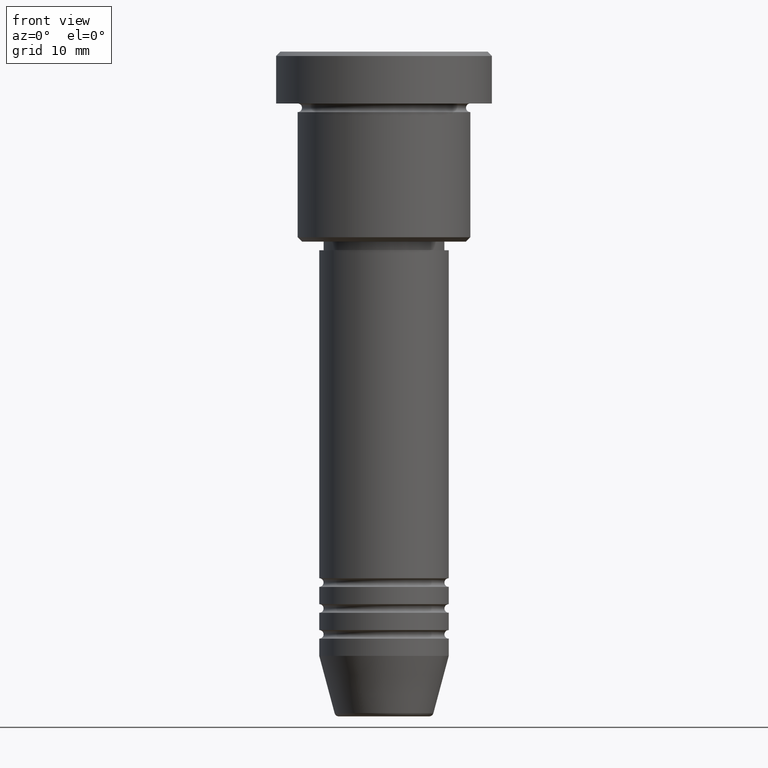
[diagram: clean part render]
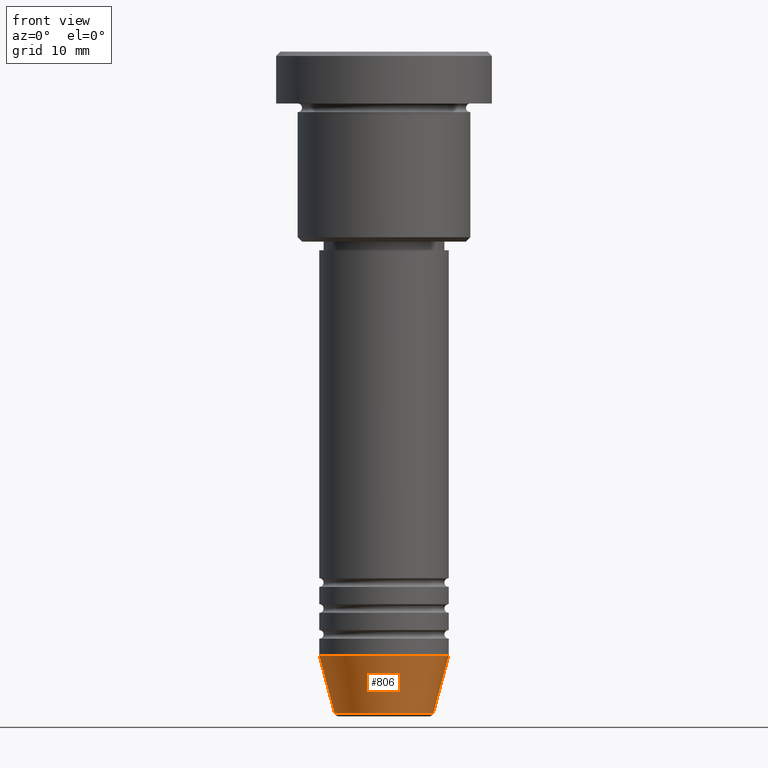
[diagram: same view with one face highlighted and labeled with its STEP entity id]
A machine part, front view. The second image highlights one B-rep face of the part: STEP entity #806.
In plain terms, the highlighted conical surface has half-angle 15 deg.
Its self-contained STEP definition (entity closure, byte-faithful):
#48 = EDGE_CURVE ( 'NONE', #828, #80, #816, .T. ) ;
#58 = CIRCLE ( 'NONE', #943, 5.723655072137191269 ) ;
#64 = CARTESIAN_POINT ( 'NONE',  ( -5.723655072137190380, 8.097153428560735915E-16, -76.62940952255127058 ) ) ;
#80 = VERTEX_POINT ( 'NONE', #490 ) ;
#190 = VERTEX_POINT ( 'NONE', #64 ) ;
#218 = CARTESIAN_POINT ( 'NONE',  ( -7.500000000000000000, 9.184850993605147944E-16, -70.00000000000000000 ) ) ;
#275 = CARTESIAN_POINT ( 'NONE',  ( 5.723655072137191269, 0.000000000000000000, -76.62940952255127058 ) ) ;
#288 = EDGE_CURVE ( 'NONE', #190, #828, #894, .T. ) ;
#289 = ORIENTED_EDGE ( 'NONE', *, *, #48, .F. ) ;
#332 = CARTESIAN_POINT ( 'NONE',  ( 7.500000000000000000, 0.000000000000000000, -70.00000000000000000 ) ) ;
#346 = DIRECTION ( 'NONE',  ( 1.000000000000000000, 0.000000000000000000, 0.000000000000000000 ) ) ;
#374 = CARTESIAN_POINT ( 'NONE',  ( -7.500000000000000000, 9.184850993605147944E-16, -70.00000000000000000 ) ) ;
#388 = ORIENTED_EDGE ( 'NONE', *, *, #1021, .T. ) ;
#406 = DIRECTION ( 'NONE',  ( 0.2588190451025213501, 0.000000000000000000, 0.9659258262890680902 ) ) ;
#408 = EDGE_LOOP ( 'NONE', ( #452, #589, #388, #289 ) ) ;
#440 = AXIS2_PLACEMENT_3D ( 'NONE', #660, #944, #582 ) ;
#452 = ORIENTED_EDGE ( 'NONE', *, *, #288, .F. ) ;
#490 = CARTESIAN_POINT ( 'NONE',  ( 7.500000000000000000, 0.000000000000000000, -70.00000000000000000 ) ) ;
#506 = EDGE_CURVE ( 'NONE', #190, #771, #58, .T. ) ;
#521 = DIRECTION ( 'NONE',  ( 1.000000000000000000, 0.000000000000000000, 0.000000000000000000 ) ) ;
#533 = FACE_OUTER_BOUND ( 'NONE', #408, .T. ) ;
#582 = DIRECTION ( 'NONE',  ( 1.000000000000000000, 0.000000000000000000, 0.000000000000000000 ) ) ;
#589 = ORIENTED_EDGE ( 'NONE', *, *, #506, .T. ) ;
#602 = CARTESIAN_POINT ( 'NONE',  ( 0.000000000000000000, 0.000000000000000000, -76.62940952255127058 ) ) ;
#660 = CARTESIAN_POINT ( 'NONE',  ( 0.000000000000000000, 0.000000000000000000, -70.00000000000000000 ) ) ;
#684 = CONICAL_SURFACE ( 'NONE', #847, 7.500000000000000000, 0.2617993877991500740 ) ;
#727 = VECTOR ( 'NONE', #819, 1000.000000000000000 ) ;
#771 = VERTEX_POINT ( 'NONE', #275 ) ;
#800 = CARTESIAN_POINT ( 'NONE',  ( 0.000000000000000000, 0.000000000000000000, -70.00000000000000000 ) ) ;
#806 = ADVANCED_FACE ( 'NONE', ( #533 ), #684, .T. ) ;
#810 = VECTOR ( 'NONE', #406, 1000.000000000000000 ) ;
#816 = CIRCLE ( 'NONE', #440, 7.500000000000000000 ) ;
#819 = DIRECTION ( 'NONE',  ( -0.2588190451025213501, 3.169619151431772337E-17, 0.9659258262890680902 ) ) ;
#828 = VERTEX_POINT ( 'NONE', #218 ) ;
#847 = AXIS2_PLACEMENT_3D ( 'NONE', #800, #1171, #346 ) ;
#880 = LINE ( 'NONE', #332, #810 ) ;
#894 = LINE ( 'NONE', #374, #727 ) ;
#943 = AXIS2_PLACEMENT_3D ( 'NONE', #602, #1155, #521 ) ;
#944 = DIRECTION ( 'NONE',  ( -0.000000000000000000, -0.000000000000000000, 1.000000000000000000 ) ) ;
#1021 = EDGE_CURVE ( 'NONE', #771, #80, #880, .T. ) ;
#1155 = DIRECTION ( 'NONE',  ( -0.000000000000000000, -0.000000000000000000, 1.000000000000000000 ) ) ;
#1171 = DIRECTION ( 'NONE',  ( -0.000000000000000000, -0.000000000000000000, 1.000000000000000000 ) ) ;